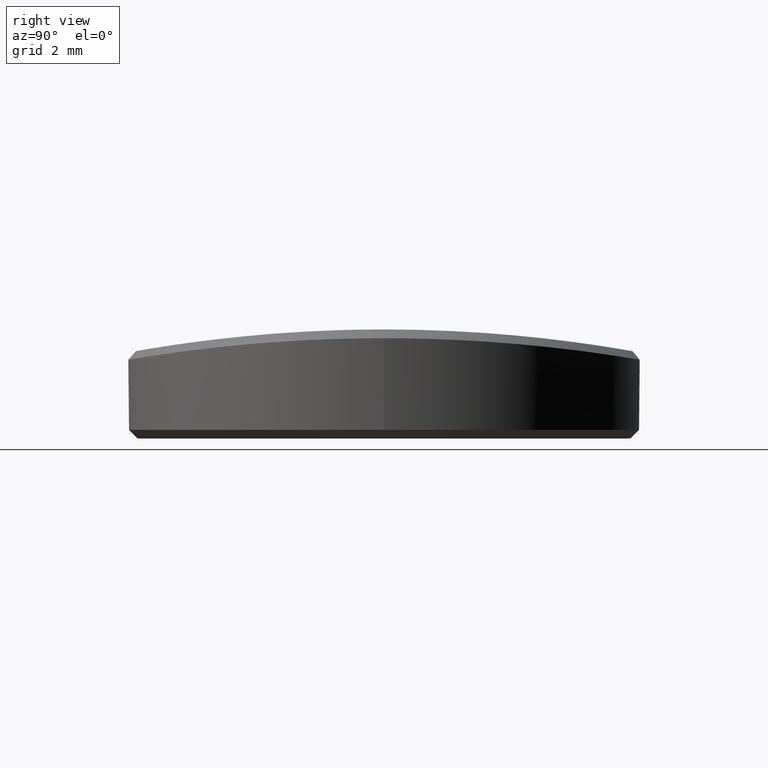
[diagram: clean part render]
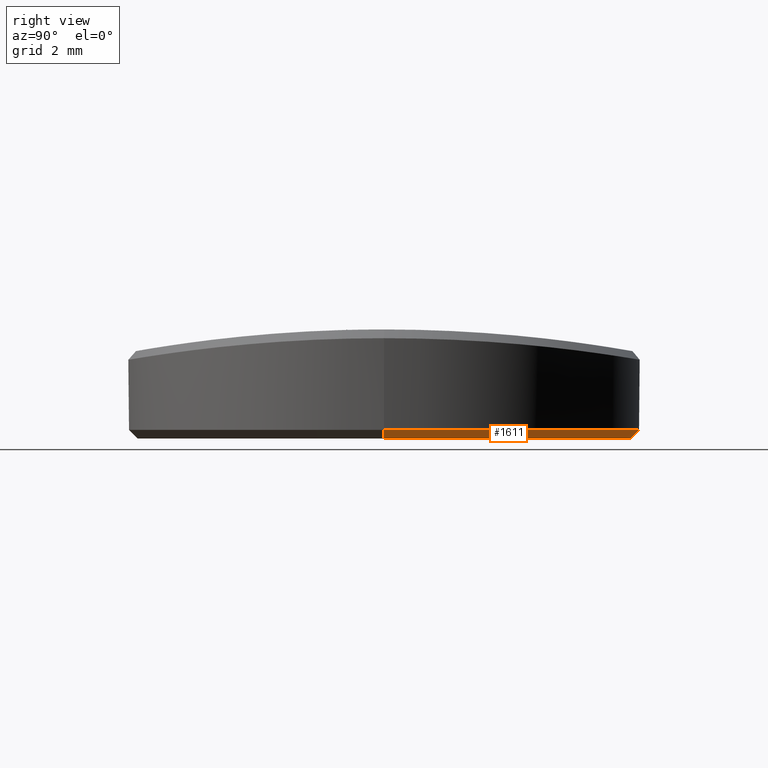
[diagram: same view with one face highlighted and labeled with its STEP entity id]
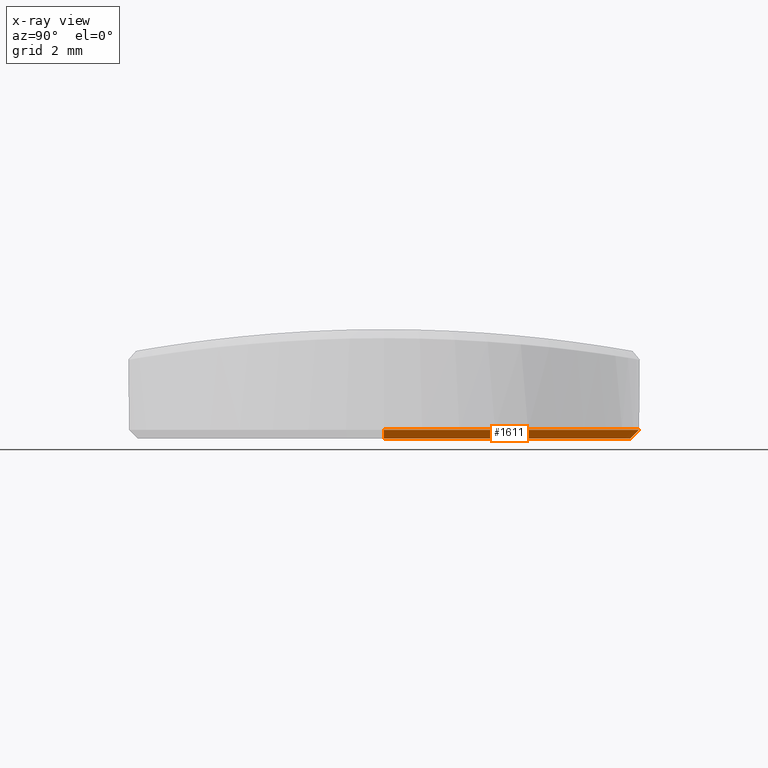
[diagram: x-ray of the same camera — body ghosted, the highlighted face saturated]
A machine part, right view. The second image highlights one B-rep face of the part: STEP entity #1611.
The next image is the same camera in x-ray: the body ghosted, the highlighted face saturated — about 0% of this face is hidden behind the body in this view.
In plain terms, the highlighted conical surface has half-angle 45 deg.
Its self-contained STEP definition (entity closure, byte-faithful):
#16 = CIRCLE ( 'NONE', #711, 5.649999999999997691 ) ;
#35 = ORIENTED_EDGE ( 'NONE', *, *, #1568, .F. ) ;
#71 = CARTESIAN_POINT ( 'NONE',  ( -5.849999999999999645, 0.000000000000000000, 0.2000000000000005107 ) ) ;
#263 = DIRECTION ( 'NONE',  ( -0.7071067811865489050, 8.659560562354951347E-17, 0.7071067811865460184 ) ) ;
#306 = AXIS2_PLACEMENT_3D ( 'NONE', #739, #2028, #562 ) ;
#336 = AXIS2_PLACEMENT_3D ( 'NONE', #1507, #382, #1348 ) ;
#382 = DIRECTION ( 'NONE',  ( -0.000000000000000000, -0.000000000000000000, 1.000000000000000000 ) ) ;
#387 = VERTEX_POINT ( 'NONE', #1217 ) ;
#506 = VERTEX_POINT ( 'NONE', #71 ) ;
#512 = LINE ( 'NONE', #686, #1164 ) ;
#521 = FACE_OUTER_BOUND ( 'NONE', #1488, .T. ) ;
#562 = DIRECTION ( 'NONE',  ( 1.000000000000000000, 0.000000000000000000, 0.000000000000000000 ) ) ;
#676 = DIRECTION ( 'NONE',  ( 1.000000000000000000, 0.000000000000000000, 0.000000000000000000 ) ) ;
#686 = CARTESIAN_POINT ( 'NONE',  ( 5.849999999999999645, 0.000000000000000000, 0.2000000000000005107 ) ) ;
#695 = DIRECTION ( 'NONE',  ( -0.000000000000000000, -0.000000000000000000, -1.000000000000000000 ) ) ;
#705 = EDGE_CURVE ( 'NONE', #1479, #506, #1985, .T. ) ;
#711 = AXIS2_PLACEMENT_3D ( 'NONE', #1991, #695, #676 ) ;
#739 = CARTESIAN_POINT ( 'NONE',  ( 0.000000000000000000, 0.000000000000000000, 0.2000000000000005107 ) ) ;
#836 = VERTEX_POINT ( 'NONE', #1083 ) ;
#846 = ORIENTED_EDGE ( 'NONE', *, *, #1341, .T. ) ;
#884 = CONICAL_SURFACE ( 'NONE', #336, 5.849999999999999645, 0.7853981633974503884 ) ;
#953 = ORIENTED_EDGE ( 'NONE', *, *, #1481, .F. ) ;
#1083 = CARTESIAN_POINT ( 'NONE',  ( -5.649999999999997691, 7.041719095097278907E-16, 0.000000000000000000 ) ) ;
#1147 = LINE ( 'NONE', #1745, #1335 ) ;
#1164 = VECTOR ( 'NONE', #2035, 1000.000000000000114 ) ;
#1217 = CARTESIAN_POINT ( 'NONE',  ( 5.649999999999997691, 0.000000000000000000, 0.000000000000000000 ) ) ;
#1335 = VECTOR ( 'NONE', #263, 1000.000000000000114 ) ;
#1337 = CARTESIAN_POINT ( 'NONE',  ( 5.849999999999999645, 7.164183775012015436E-16, 0.2000000000000005107 ) ) ;
#1341 = EDGE_CURVE ( 'NONE', #836, #506, #1147, .T. ) ;
#1348 = DIRECTION ( 'NONE',  ( 1.000000000000000000, 0.000000000000000000, 0.000000000000000000 ) ) ;
#1479 = VERTEX_POINT ( 'NONE', #1337 ) ;
#1481 = EDGE_CURVE ( 'NONE', #836, #387, #16, .T. ) ;
#1488 = EDGE_LOOP ( 'NONE', ( #953, #846, #1947, #35 ) ) ;
#1507 = CARTESIAN_POINT ( 'NONE',  ( 0.000000000000000000, 0.000000000000000000, 0.2000000000000005107 ) ) ;
#1568 = EDGE_CURVE ( 'NONE', #387, #1479, #512, .T. ) ;
#1611 = ADVANCED_FACE ( 'NONE', ( #521 ), #884, .T. ) ;
#1745 = CARTESIAN_POINT ( 'NONE',  ( -5.849999999999999645, 7.164183775012015436E-16, 0.2000000000000005107 ) ) ;
#1947 = ORIENTED_EDGE ( 'NONE', *, *, #705, .F. ) ;
#1985 = CIRCLE ( 'NONE', #306, 5.849999999999999645 ) ;
#1991 = CARTESIAN_POINT ( 'NONE',  ( 0.000000000000000000, 0.000000000000000000, 0.000000000000000000 ) ) ;
#2028 = DIRECTION ( 'NONE',  ( -0.000000000000000000, -0.000000000000000000, 1.000000000000000000 ) ) ;
#2035 = DIRECTION ( 'NONE',  ( 0.7071067811865489050, 0.000000000000000000, 0.7071067811865460184 ) ) ;